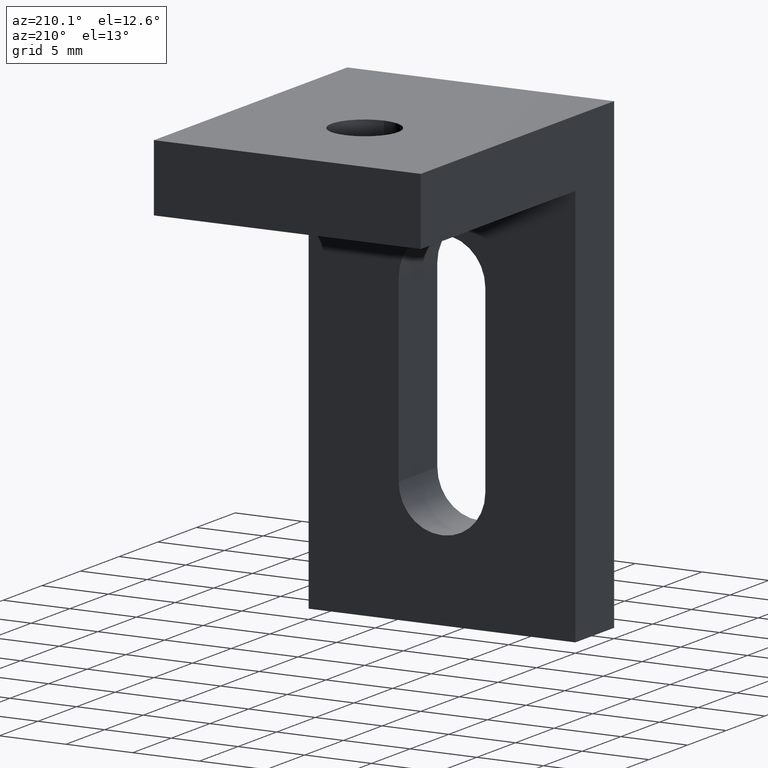
[diagram: clean part render]
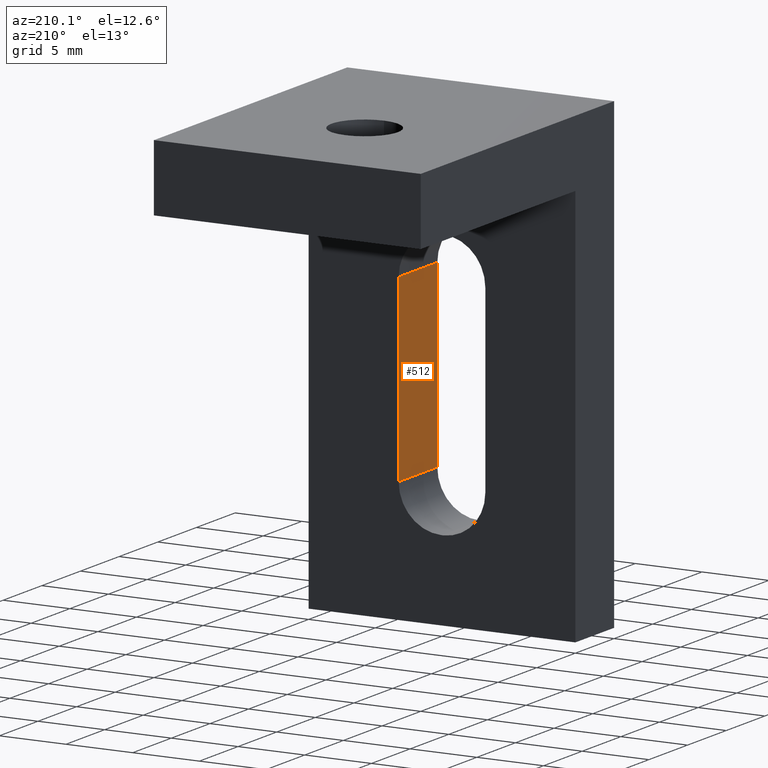
[diagram: same view with one face highlighted and labeled with its STEP entity id]
A machine part, auxiliary view. The second image highlights one B-rep face of the part: STEP entity #512.
In plain terms, the highlighted planar face has unit normal (1, -0, 0).
Its self-contained STEP definition (entity closure, byte-faithful):
#2 = VERTEX_POINT ( 'NONE', #33 ) ;
#8 = DIRECTION ( 'NONE',  ( 0.0000000000000000000, 1.000000000000000000, 1.652117596168388200E-016 ) ) ;
#12 = CARTESIAN_POINT ( 'NONE',  ( 13.25000000000000500, 4.999999999999997300, -12.20000000000000600 ) ) ;
#26 = CARTESIAN_POINT ( 'NONE',  ( 13.25000000000000900, -1.422473250300982000E-015, -25.80000000000000800 ) ) ;
#33 = CARTESIAN_POINT ( 'NONE',  ( 13.25000000000000500, 4.999999999999997300, -12.20000000000000600 ) ) ;
#35 = VERTEX_POINT ( 'NONE', #59 ) ;
#43 = VERTEX_POINT ( 'NONE', #26 ) ;
#59 = CARTESIAN_POINT ( 'NONE',  ( 13.25000000000000900, 4.999999999999999100, -25.80000000000000800 ) ) ;
#71 = CARTESIAN_POINT ( 'NONE',  ( 13.25000000000000900, -1.396039368762288100E-015, -25.80000000000000800 ) ) ;
#79 = CARTESIAN_POINT ( 'NONE',  ( 13.25000000000000500, -3.781697177629438700E-015, -12.20000000000000600 ) ) ;
#87 = DIRECTION ( 'NONE',  ( -0.0000000000000000000, -1.000000000000000000, -1.652117596168388200E-016 ) ) ;
#89 = VERTEX_POINT ( 'NONE', #79 ) ;
#93 = PLANE ( 'NONE',  #446 ) ;
#94 = DIRECTION ( 'NONE',  ( 1.734723475976806800E-016, 0.0000000000000000000, -1.000000000000000000 ) ) ;
#153 = CARTESIAN_POINT ( 'NONE',  ( 13.25000000000000900, -8.673617379884035500E-016, -29.00000000000000700 ) ) ;
#160 = DIRECTION ( 'NONE',  ( 1.000000000000000000, -2.865967179147672700E-032, 1.734723475976806800E-016 ) ) ;
#198 = ORIENTED_EDGE ( 'NONE', *, *, #491, .T. ) ;
#201 = LINE ( 'NONE', #464, #306 ) ;
#212 = ORIENTED_EDGE ( 'NONE', *, *, #493, .T. ) ;
#248 = VECTOR ( 'NONE', #485, 1000.000000000000000 ) ;
#285 = ORIENTED_EDGE ( 'NONE', *, *, #566, .T. ) ;
#299 = LINE ( 'NONE', #12, #309 ) ;
#303 = ORIENTED_EDGE ( 'NONE', *, *, #564, .F. ) ;
#306 = VECTOR ( 'NONE', #456, 1000.000000000000000 ) ;
#309 = VECTOR ( 'NONE', #8, 1000.000000000000000 ) ;
#334 = VECTOR ( 'NONE', #87, 1000.000000000000000 ) ;
#356 = LINE ( 'NONE', #462, #248 ) ;
#359 = FACE_OUTER_BOUND ( 'NONE', #362, .T. ) ;
#362 = EDGE_LOOP ( 'NONE', ( #303, #198, #285, #212 ) ) ;
#396 = LINE ( 'NONE', #71, #334 ) ;
#446 = AXIS2_PLACEMENT_3D ( 'NONE', #153, #160, #94 ) ;
#456 = DIRECTION ( 'NONE',  ( 1.734723475976806800E-016, 1.734723475976806800E-016, -1.000000000000000000 ) ) ;
#462 = CARTESIAN_POINT ( 'NONE',  ( 13.25000000000000900, -8.673617379884035500E-016, -29.00000000000000700 ) ) ;
#464 = CARTESIAN_POINT ( 'NONE',  ( 13.25000000000000900, 5.000000000000000000, -29.00000000000000700 ) ) ;
#485 = DIRECTION ( 'NONE',  ( 1.734723475976806800E-016, 1.734723475976806800E-016, -1.000000000000000000 ) ) ;
#491 = EDGE_CURVE ( 'NONE', #89, #2, #299, .T. ) ;
#493 = EDGE_CURVE ( 'NONE', #35, #43, #396, .T. ) ;
#512 = ADVANCED_FACE ( 'NONE', ( #359 ), #93, .F. ) ;
#564 = EDGE_CURVE ( 'NONE', #89, #43, #356, .T. ) ;
#566 = EDGE_CURVE ( 'NONE', #2, #35, #201, .T. ) ;